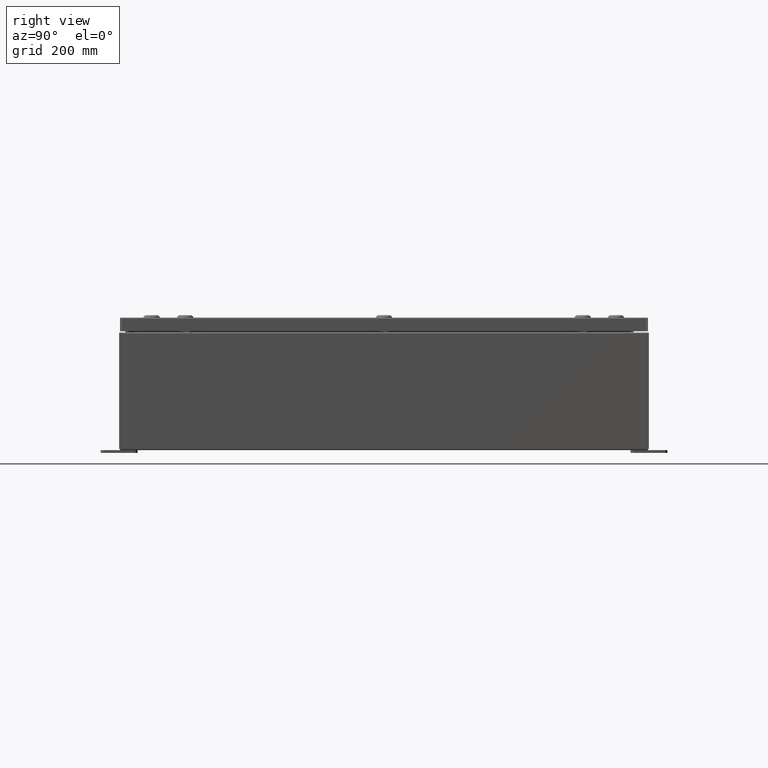
[diagram: clean part render]
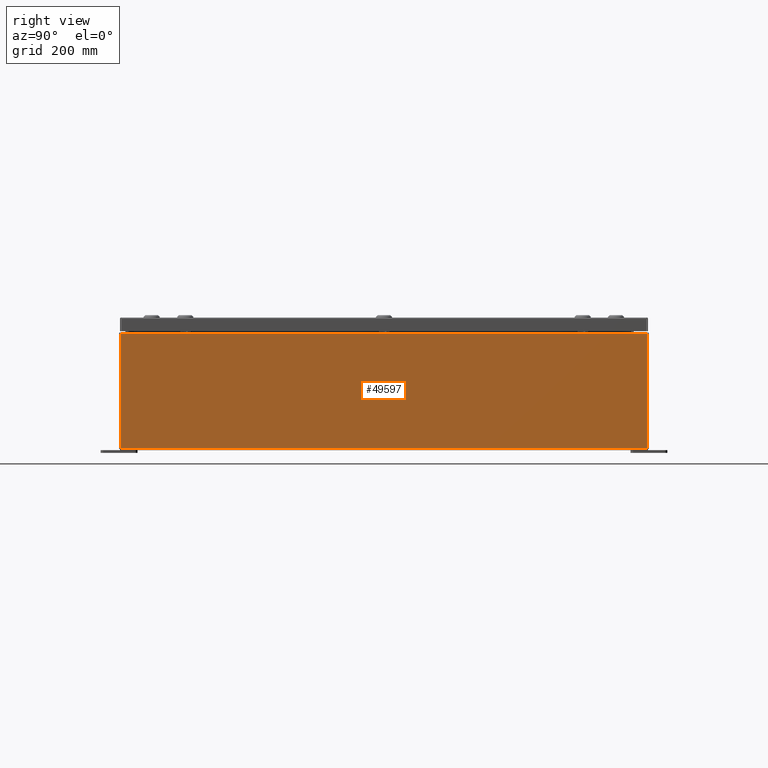
[diagram: same view with one face highlighted and labeled with its STEP entity id]
A machine part, right view. The second image highlights one B-rep face of the part: STEP entity #49597.
In plain terms, the highlighted planar face has unit normal (-1, 0, 0).
Its self-contained STEP definition (entity closure, byte-faithful):
#998 = PLANE ( 'NONE',  #3736 ) ;
#2995 = CARTESIAN_POINT ( 'NONE',  ( 15.00000000000002700, 17.92530000000000000, 7.837599999999992100 ) ) ;
#3736 = AXIS2_PLACEMENT_3D ( 'NONE', #31455, #6107, #41661 ) ;
#4145 = EDGE_CURVE ( 'NONE', #39947, #60935, #23925, .T. ) ;
#5158 = CARTESIAN_POINT ( 'NONE',  ( 14.99999999999999800, 17.92530000000000000, -5.403395625144962100E-014 ) ) ;
#6107 = DIRECTION ( 'NONE',  ( -1.000000000000000000, 0.0000000000000000000, 3.584876173029202900E-015 ) ) ;
#13198 = FACE_OUTER_BOUND ( 'NONE', #60044, .T. ) ;
#18987 = ORIENTED_EDGE ( 'NONE', *, *, #54176, .T. ) ;
#20517 = DIRECTION ( 'NONE',  ( 3.584876173029202900E-015, 0.0000000000000000000, 1.000000000000000000 ) ) ;
#20911 = CARTESIAN_POINT ( 'NONE',  ( 15.00000000000002700, 17.92530000000000000, 7.837599999999992100 ) ) ;
#21494 = LINE ( 'NONE', #2995, #46959 ) ;
#22302 = VECTOR ( 'NONE', #20517, 39.37007874015748100 ) ;
#23925 = LINE ( 'NONE', #5158, #22302 ) ;
#30950 = CARTESIAN_POINT ( 'NONE',  ( 15.00000000000002700, -17.92530000000000000, 7.837599999999998300 ) ) ;
#31455 = CARTESIAN_POINT ( 'NONE',  ( 14.99999999999999800, 0.0000000000000000000, -5.403395625144962100E-014 ) ) ;
#32196 = EDGE_CURVE ( 'NONE', #39947, #58899, #61327, .T. ) ;
#33966 = ORIENTED_EDGE ( 'NONE', *, *, #4145, .T. ) ;
#39947 = VERTEX_POINT ( 'NONE', #53725 ) ;
#41661 = DIRECTION ( 'NONE',  ( 3.584876173029202900E-015, 0.0000000000000000000, 1.000000000000000000 ) ) ;
#46959 = VECTOR ( 'NONE', #59056, 39.37007874015748100 ) ;
#47403 = ORIENTED_EDGE ( 'NONE', *, *, #32196, .F. ) ;
#47732 = VECTOR ( 'NONE', #57649, 39.37007874015748100 ) ;
#49597 = ADVANCED_FACE ( 'NONE', ( #13198 ), #998, .F. ) ;
#49786 = EDGE_CURVE ( 'NONE', #59280, #58899, #62590, .T. ) ;
#53725 = CARTESIAN_POINT ( 'NONE',  ( 14.99999999999999800, 17.92530000000000000, 0.01299999999999766100 ) ) ;
#54176 = EDGE_CURVE ( 'NONE', #60935, #59280, #21494, .T. ) ;
#54652 = CARTESIAN_POINT ( 'NONE',  ( 14.99999999999999800, -17.92530000000000000, 0.01300000000000021600 ) ) ;
#57649 = DIRECTION ( 'NONE',  ( 2.185366332686126200E-031, -1.000000000000000000, 6.096072018129156600E-017 ) ) ;
#58096 = CARTESIAN_POINT ( 'NONE',  ( 14.99999999999999800, -17.92530000000000000, -5.403395625144962100E-014 ) ) ;
#58315 = DIRECTION ( 'NONE',  ( -3.584876173029202900E-015, 0.0000000000000000000, -1.000000000000000000 ) ) ;
#58899 = VERTEX_POINT ( 'NONE', #54652 ) ;
#59056 = DIRECTION ( 'NONE',  ( -0.0000000000000000000, -1.000000000000000000, -0.0000000000000000000 ) ) ;
#59280 = VERTEX_POINT ( 'NONE', #30950 ) ;
#60044 = EDGE_LOOP ( 'NONE', ( #18987, #65266, #47403, #33966 ) ) ;
#60935 = VERTEX_POINT ( 'NONE', #20911 ) ;
#61327 = LINE ( 'NONE', #62793, #47732 ) ;
#62590 = LINE ( 'NONE', #58096, #64147 ) ;
#62793 = CARTESIAN_POINT ( 'NONE',  ( 14.99999999999999800, -17.92530000000000000, 0.01299999999999984700 ) ) ;
#64147 = VECTOR ( 'NONE', #58315, 39.37007874015748100 ) ;
#65266 = ORIENTED_EDGE ( 'NONE', *, *, #49786, .T. ) ;